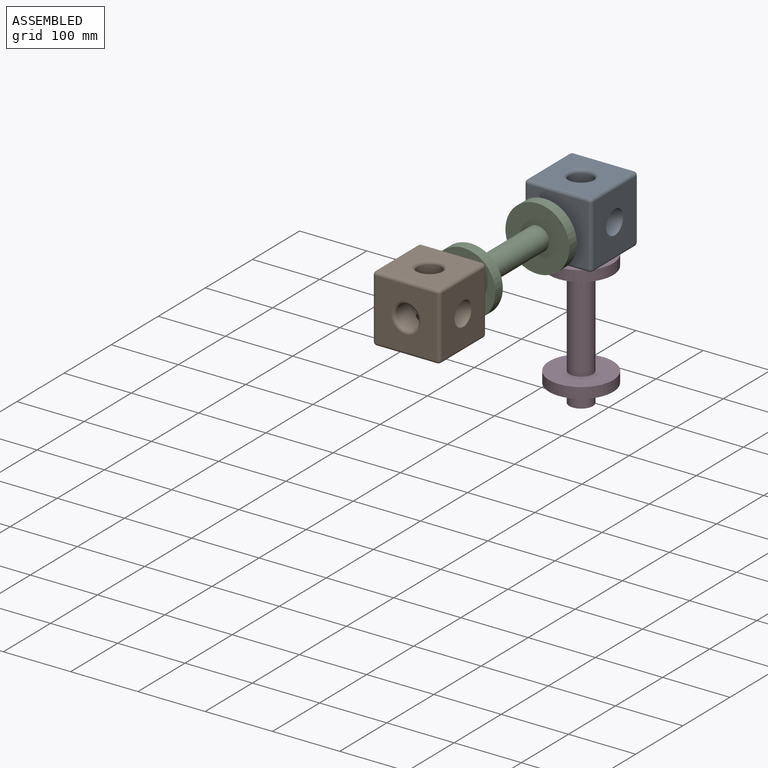
[diagram: assembled view]
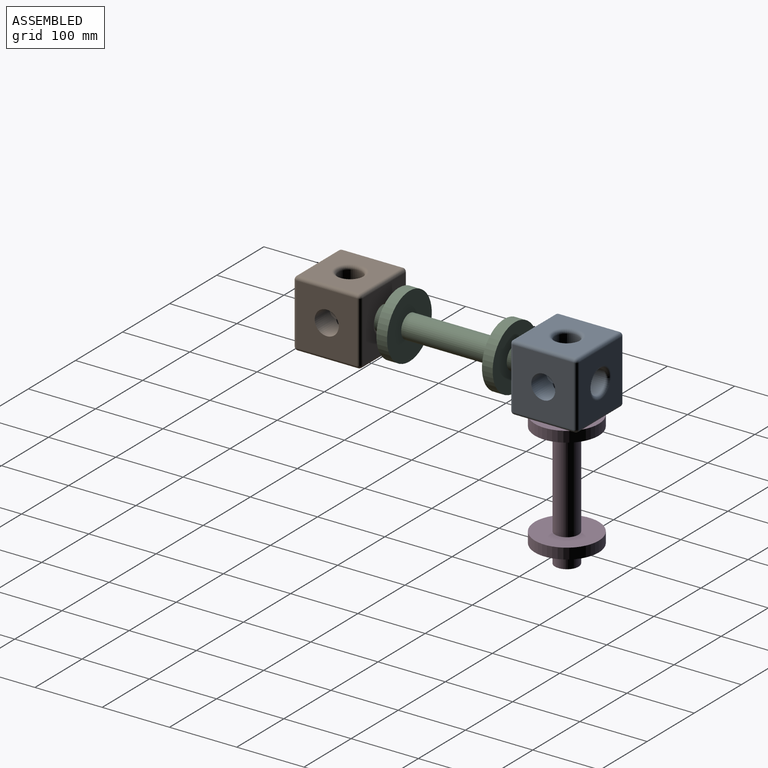
[diagram: assembled view, second angle]
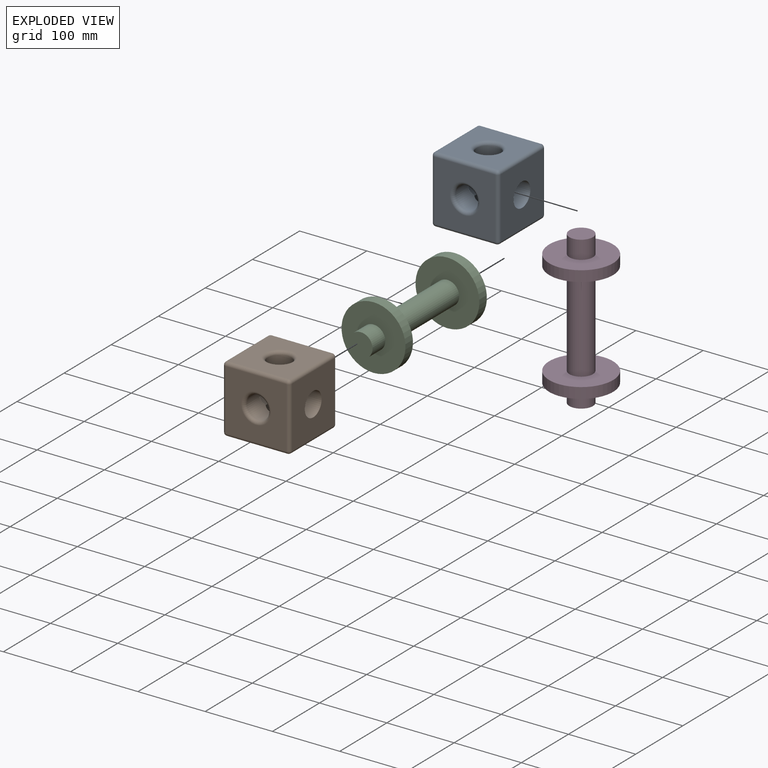
[diagram: exploded view]
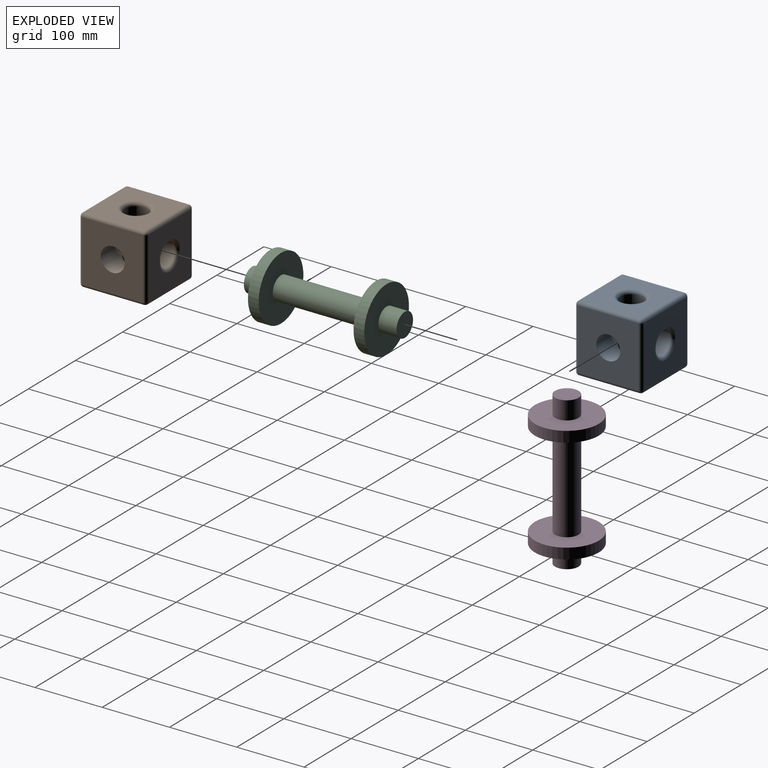
[diagram: exploded view, second angle]
ASSEMBLY  parts=4 mates=3
PART A: 37 faces, bbox 100x100x100 mm
  f0: cylinder r=17.82mm len=35.65mm, axis (-1,0,0), area 3292mm2, adj f1,f8,f10,f11,f14
  f1: cylinder r=17.34mm len=34.68mm, axis (0,-1,0), area 3160.4mm2, adj f0,f9,f10,f11,f15
  f2: plane 90x90mm, normal (0,0,-1), area 6505.9mm2, adj f13,f25,f30,f33,f36
  f3: plane 90x90mm, normal (1,0,0), area 7101.8mm2, adj f9,f22,f31,f32,f36
  f4: plane 90x90mm, normal (0,0,1), area 6505.9mm2, adj f12,f17,f21,f22,f23
  f5: plane 90x90mm, normal (-1,0,0), area 6463.3mm2, adj f14,f17,f20,f24,f25
  f6: plane 90x90mm, normal (0,-1,0), area 6532.4mm2, adj f16,f20,f21,f30,f31
  f7: plane 90x90mm, normal (0,1,0), area 6532.4mm2, adj f15,f23,f24,f32,f33
  f8: cylinder r=17.34mm len=34.68mm, axis (0,-1,0), area 3160.4mm2, adj f0,f9,f10,f11,f16
  f9: cylinder r=17.82mm len=37.96mm, axis (-1,0,0), area 3852mm2, adj f1,f3,f8,f10,f11
  f10: cylinder r=17.53mm len=35.05mm, axis (0,0,1), area 3263mm2, adj f0,f1,f8,f9,f13
  f11: cylinder r=17.53mm len=35.05mm, axis (0,0,1), area 3157.5mm2, adj f0,f1,f8,f9,f12
  f12: torus R=22.53mm, axis (0,0,-1), area 954.5mm2, adj f4,f11
  f13: torus R=22.53mm, axis (0,0,-1), area 954.5mm2, adj f2,f10
  f14: torus R=22.82mm, axis (1,0,0), area 969.3mm2, adj f0,f5
  f15: torus R=22.34mm, axis (0,-1,0), area 945.3mm2, adj f1,f7
  f16: torus R=22.34mm, axis (0,-1,0), area 945.3mm2, adj f6,f8
  f17: cylinder r=5mm len=90mm, axis (0,1,0), area 706.9mm2, adj f4,f5,f18,f19
  f18: sphere r=5mm, area 39.3mm2, adj f17,f20,f21
  f19: sphere r=5mm, area 39.3mm2, adj f17,f23,f24
  f20: cylinder r=5mm len=90mm, axis (0,0,1), area 706.9mm2, adj f5,f6,f18,f26
  f21: cylinder r=5mm len=90mm, axis (1,0,0), area 706.9mm2, adj f4,f6,f18,f27
  f22: cylinder r=5mm len=90mm, axis (0,-1,0), area 706.9mm2, adj f3,f4,f27,f28
  f23: cylinder r=5mm len=90mm, axis (-1,0,0), area 706.9mm2, adj f4,f7,f19,f28
  f24: cylinder r=5mm len=90mm, axis (0,0,-1), area 706.9mm2, adj f5,f7,f19,f29
  f25: cylinder r=5mm len=90mm, axis (0,-1,0), area 706.9mm2, adj f2,f5,f26,f29
  f26: sphere r=5mm, area 39.3mm2, adj f20,f25,f30
  f27: sphere r=5mm, area 39.3mm2, adj f21,f22,f31
  f28: sphere r=5mm, area 39.3mm2, adj f22,f23,f32
  f29: sphere r=5mm, area 39.3mm2, adj f24,f25,f33
  f30: cylinder r=5mm len=90mm, axis (-1,0,0), area 706.9mm2, adj f2,f6,f26,f34
  f31: cylinder r=5mm len=90mm, axis (0,0,-1), area 706.9mm2, adj f3,f6,f27,f34
  f32: cylinder r=5mm len=90mm, axis (0,0,1), area 706.9mm2, adj f3,f7,f28,f35
  f33: cylinder r=5mm len=90mm, axis (1,0,0), area 706.9mm2, adj f2,f7,f29,f35
  f34: sphere r=5mm, area 39.3mm2, adj f30,f31,f36
  f35: sphere r=5mm, area 39.3mm2, adj f32,f33,f36
  f36: cylinder r=5mm len=90mm, axis (0,1,0), area 706.9mm2, adj f2,f3,f34,f35
PART B: same geometry as A
PART C: 11 faces, bbox 95x227x95 mm
  f0: plane 35x35mm, normal (0,1,0), area 962.1mm2, adj f1
  f1: cylinder r=17.5mm len=35mm, axis (0,1,0), area 2973.8mm2, adj f0,f2
  f2: plane 95x95mm, normal (0,1,0), area 6126.1mm2, adj f1,f3
  f3: cylinder r=47.5mm len=95mm, axis (0,1,0), area 4748.1mm2, adj f2,f4
  f4: plane 95x95mm, normal (0,-1,0), area 6126.1mm2, adj f3,f5
  f5: cylinder r=17.5mm len=141.06mm, axis (0,1,0), area 15510.4mm2, adj f4,f10
  f6: plane 35x35mm, normal (0,-1,0), area 962.1mm2, adj f7
  f7: cylinder r=17.5mm len=35mm, axis (0,-1,0), area 2973.8mm2, adj f6,f8
  f8: plane 95x95mm, normal (0,-1,0), area 6126.1mm2, adj f7,f9
  f9: cylinder r=47.5mm len=95mm, axis (0,-1,0), area 4748.1mm2, adj f8,f10
  f10: plane 95x95mm, normal (0,1,0), area 6126.1mm2, adj f5,f9
PART D: same geometry as C
PLACE A t=(-166.9,-6.19,-116.5)mm fixed
PLACE B t=(-166.9,-328.16,-116.5)mm fixed
PLACE C t=(-166.9,-169.67,-116.5)mm
PLACE D rot(axis=(1,0,0),90deg) t=(-166.9,-6.19,-258.86)mm
MATE fastened A.f1 <-> C.f1  axis (0,-1,0) through (-166.9,-56.19,-116.5)mm
MATE fastened D.f1 <-> A.f12  axis (0,0,1) through (-166.9,-6.19,-145.37)mm
MATE fastened B.f1 <-> C.f1  axis (0,-1,0) through (-166.9,-283.16,-116.5)mm
